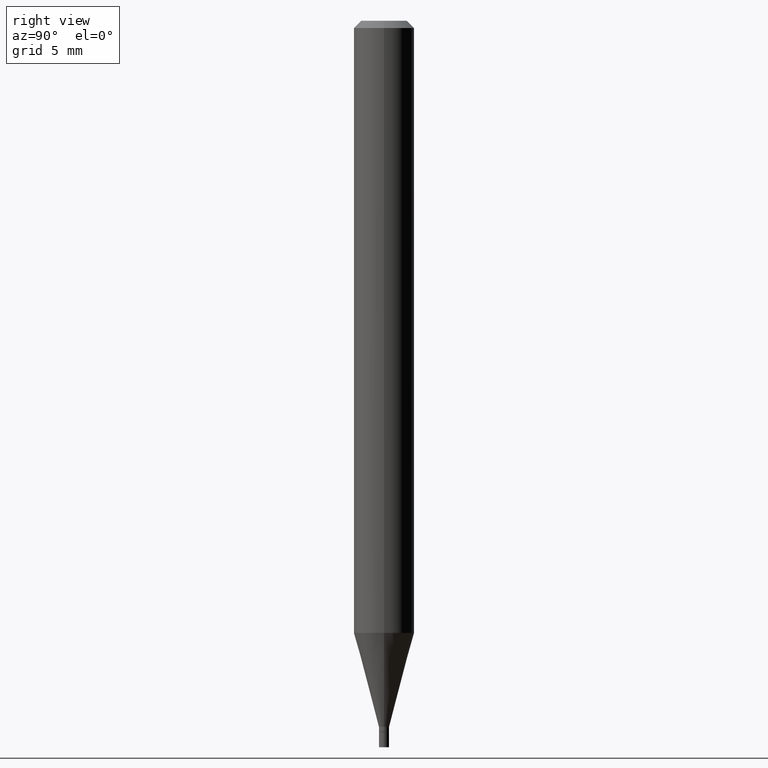
[diagram: clean part render]
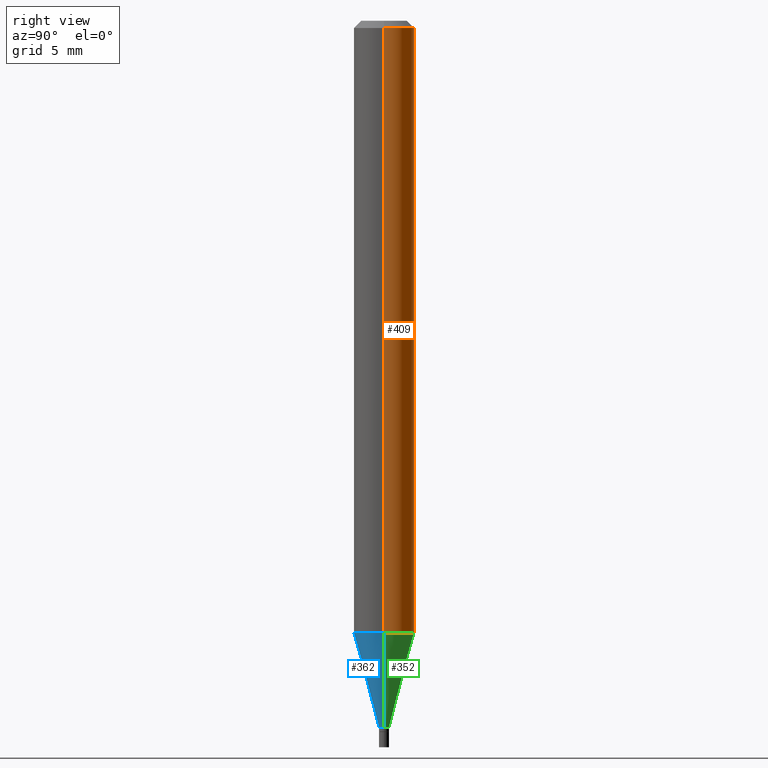
[diagram: same view with three faces highlighted in distinct colors, each labeled with its STEP entity id]
A machine part, right view with three faces highlighted in distinct colors.
Their STEP definitions:

[orange] entity #409 — the highlighted cylindrical surface (edge-blend (fillet) strip) has radius 1.5875 mm, axis along (-0, 0, 1).
#3 = LINE ( 'NONE', #438, #330 ) ;
#10 = CARTESIAN_POINT ( 'NONE',  ( 0.06250000000000000000, -4.849434900376155208E-15, -1.263933358006418706 ) ) ;
#15 = DIRECTION ( 'NONE',  ( -2.445468806185136877E-29, 3.491481338843145188E-15, 1.000000000000000000 ) ) ;
#19 = CARTESIAN_POINT ( 'NONE',  ( 0.000000000000000000, 0.000000000000000000, 0.000000000000000000 ) ) ;
#26 = AXIS2_PLACEMENT_3D ( 'NONE', #422, #268, #104 ) ;
#33 = VECTOR ( 'NONE', #15, 39.37007874015748143 ) ;
#77 = CYLINDRICAL_SURFACE ( 'NONE', #405, 0.06250000000000000000 ) ;
#88 = EDGE_LOOP ( 'NONE', ( #333, #410, #125, #463 ) ) ;
#90 = VERTEX_POINT ( 'NONE', #141 ) ;
#97 = CIRCLE ( 'NONE', #26, 0.06250000000000000000 ) ;
#104 = DIRECTION ( 'NONE',  ( 1.000000000000000000, -6.982962677686262766E-15, 0.000000000000000000 ) ) ;
#125 = ORIENTED_EDGE ( 'NONE', *, *, #332, .F. ) ;
#141 = CARTESIAN_POINT ( 'NONE',  ( -0.06250000000000000000, -1.788596766701642890E-15, -0.01499999999999999944 ) ) ;
#178 = FACE_OUTER_BOUND ( 'NONE', #88, .T. ) ;
#180 = EDGE_CURVE ( 'NONE', #335, #90, #383, .T. ) ;
#189 = VERTEX_POINT ( 'NONE', #314 ) ;
#204 = CIRCLE ( 'NONE', #232, 0.06250000000000000000 ) ;
#206 = DIRECTION ( 'NONE',  ( -2.445468806185136597E-29, 3.491481338843145583E-15, 1.000000000000000000 ) ) ;
#215 = CARTESIAN_POINT ( 'NONE',  ( 3.668203209277705088E-31, -5.237222008264718399E-17, -0.01499999999999999944 ) ) ;
#223 = VERTEX_POINT ( 'NONE', #10 ) ;
#232 = AXIS2_PLACEMENT_3D ( 'NONE', #215, #334, #296 ) ;
#256 = DIRECTION ( 'NONE',  ( -2.445468806185136877E-29, 3.491481338843145188E-15, 1.000000000000000000 ) ) ;
#268 = DIRECTION ( 'NONE',  ( -2.445468806185136597E-29, 3.491481338843145583E-15, 1.000000000000000000 ) ) ;
#287 = EDGE_CURVE ( 'NONE', #223, #189, #3, .T. ) ;
#296 = DIRECTION ( 'NONE',  ( 1.000000000000000000, -6.982962677686266711E-15, 0.000000000000000000 ) ) ;
#314 = CARTESIAN_POINT ( 'NONE',  ( 0.06250000000000000000, -4.888073874380388472E-16, -0.01499999999999999944 ) ) ;
#315 = DIRECTION ( 'NONE',  ( 1.000000000000000000, -6.982962677686266711E-15, 4.876176775795935793E-29 ) ) ;
#330 = VECTOR ( 'NONE', #256, 39.37007874015748143 ) ;
#332 = EDGE_CURVE ( 'NONE', #189, #90, #204, .T. ) ;
#333 = ORIENTED_EDGE ( 'NONE', *, *, #457, .T. ) ;
#334 = DIRECTION ( 'NONE',  ( -2.445468806185136597E-29, 3.491481338843145583E-15, 1.000000000000000000 ) ) ;
#335 = VERTEX_POINT ( 'NONE', #454 ) ;
#346 = CARTESIAN_POINT ( 'NONE',  ( -0.06250000000000000000, 4.440892098500626162E-16, -3.074334431409316114E-30 ) ) ;
#383 = LINE ( 'NONE', #346, #33 ) ;
#405 = AXIS2_PLACEMENT_3D ( 'NONE', #19, #206, #315 ) ;
#409 = ADVANCED_FACE ( 'NONE', ( #178 ), #77, .T. ) ;
#410 = ORIENTED_EDGE ( 'NONE', *, *, #180, .T. ) ;
#422 = CARTESIAN_POINT ( 'NONE',  ( 3.090909600101528156E-29, -4.412999733020764327E-15, -1.263933358006418706 ) ) ;
#438 = CARTESIAN_POINT ( 'NONE',  ( 0.06250000000000000000, -4.364351673553916694E-16, 3.047610484872459871E-30 ) ) ;
#454 = CARTESIAN_POINT ( 'NONE',  ( -0.06250000000000000000, -3.968910523170700922E-15, -1.263933358006418706 ) ) ;
#457 = EDGE_CURVE ( 'NONE', #223, #335, #97, .T. ) ;
#463 = ORIENTED_EDGE ( 'NONE', *, *, #287, .F. ) ;

[blue] entity #362 — the highlighted conical surface has half-angle 15 deg.
#8 = ORIENTED_EDGE ( 'NONE', *, *, #328, .T. ) ;
#10 = CARTESIAN_POINT ( 'NONE',  ( 0.06250000000000000000, -4.849434900376155208E-15, -1.263933358006418706 ) ) ;
#16 = VERTEX_POINT ( 'NONE', #358 ) ;
#20 = CIRCLE ( 'NONE', #227, 0.06250000000000000000 ) ;
#39 = CARTESIAN_POINT ( 'NONE',  ( 3.565493519417929750E-29, -5.090579792033306355E-15, -1.458000000000000185 ) ) ;
#43 = ORIENTED_EDGE ( 'NONE', *, *, #320, .T. ) ;
#49 = VECTOR ( 'NONE', #91, 39.37007874015747433 ) ;
#53 = DIRECTION ( 'NONE',  ( -2.445468806185136597E-29, 3.491481338843145583E-15, 1.000000000000000000 ) ) ;
#56 = ORIENTED_EDGE ( 'NONE', *, *, #241, .F. ) ;
#73 = DIRECTION ( 'NONE',  ( 0.2588190451025214611, 1.565188264969621573E-15, 0.9659258262890682012 ) ) ;
#84 = DIRECTION ( 'NONE',  ( 1.000000000000000000, -6.982962677686243834E-15, 0.000000000000000000 ) ) ;
#91 = DIRECTION ( 'NONE',  ( -0.2588190451025214611, 5.211531920934551042E-15, 0.9659258262890682012 ) ) ;
#119 = AXIS2_PLACEMENT_3D ( 'NONE', #39, #444, #84 ) ;
#146 = CARTESIAN_POINT ( 'NONE',  ( 3.565493519417929750E-29, -5.090579792033306355E-15, -1.458000000000000185 ) ) ;
#212 = CONICAL_SURFACE ( 'NONE', #119, 0.01049999999999992432, 0.2617993877991501295 ) ;
#223 = VERTEX_POINT ( 'NONE', #10 ) ;
#226 = CARTESIAN_POINT ( 'NONE',  ( -0.01049999999999992432, -5.015972804778496164E-15, -1.458000000000000185 ) ) ;
#227 = AXIS2_PLACEMENT_3D ( 'NONE', #231, #53, #309 ) ;
#231 = CARTESIAN_POINT ( 'NONE',  ( 3.090909600101528156E-29, -4.412999733020764327E-15, -1.263933358006418706 ) ) ;
#238 = EDGE_CURVE ( 'NONE', #415, #335, #442, .T. ) ;
#240 = LINE ( 'NONE', #462, #381 ) ;
#241 = EDGE_CURVE ( 'NONE', #335, #223, #20, .T. ) ;
#262 = EDGE_LOOP ( 'NONE', ( #408, #43, #8, #56 ) ) ;
#273 = FACE_OUTER_BOUND ( 'NONE', #262, .T. ) ;
#274 = AXIS2_PLACEMENT_3D ( 'NONE', #146, #331, #292 ) ;
#292 = DIRECTION ( 'NONE',  ( 1.000000000000000000, -6.982962677686243834E-15, 0.000000000000000000 ) ) ;
#309 = DIRECTION ( 'NONE',  ( 1.000000000000000000, -6.982962677686262766E-15, 0.000000000000000000 ) ) ;
#320 = EDGE_CURVE ( 'NONE', #415, #16, #325, .T. ) ;
#325 = CIRCLE ( 'NONE', #274, 0.01049999999999992432 ) ;
#328 = EDGE_CURVE ( 'NONE', #16, #223, #240, .T. ) ;
#331 = DIRECTION ( 'NONE',  ( -2.445468806185136597E-29, 3.491481338843145583E-15, 1.000000000000000000 ) ) ;
#335 = VERTEX_POINT ( 'NONE', #454 ) ;
#358 = CARTESIAN_POINT ( 'NONE',  ( 0.01049999999999992432, -5.163900900149011871E-15, -1.458000000000000185 ) ) ;
#362 = ADVANCED_FACE ( 'NONE', ( #273 ), #212, .T. ) ;
#381 = VECTOR ( 'NONE', #73, 39.37007874015747433 ) ;
#408 = ORIENTED_EDGE ( 'NONE', *, *, #238, .F. ) ;
#415 = VERTEX_POINT ( 'NONE', #458 ) ;
#442 = LINE ( 'NONE', #226, #49 ) ;
#444 = DIRECTION ( 'NONE',  ( -2.445468806185136597E-29, 3.491481338843145583E-15, 1.000000000000000000 ) ) ;
#454 = CARTESIAN_POINT ( 'NONE',  ( -0.06250000000000000000, -3.968910523170700922E-15, -1.263933358006418706 ) ) ;
#458 = CARTESIAN_POINT ( 'NONE',  ( -0.01049999999999992432, -4.492441663974599726E-15, -1.458000000000000185 ) ) ;
#462 = CARTESIAN_POINT ( 'NONE',  ( 0.01049999999999992432, -5.163900900149011871E-15, -1.458000000000000185 ) ) ;

[green] entity #352 — the highlighted conical surface has half-angle 15 deg.
#10 = CARTESIAN_POINT ( 'NONE',  ( 0.06250000000000000000, -4.849434900376155208E-15, -1.263933358006418706 ) ) ;
#12 = ORIENTED_EDGE ( 'NONE', *, *, #328, .F. ) ;
#16 = VERTEX_POINT ( 'NONE', #358 ) ;
#26 = AXIS2_PLACEMENT_3D ( 'NONE', #422, #268, #104 ) ;
#38 = ORIENTED_EDGE ( 'NONE', *, *, #238, .T. ) ;
#49 = VECTOR ( 'NONE', #91, 39.37007874015747433 ) ;
#62 = AXIS2_PLACEMENT_3D ( 'NONE', #428, #348, #214 ) ;
#73 = DIRECTION ( 'NONE',  ( 0.2588190451025214611, 1.565188264969621573E-15, 0.9659258262890682012 ) ) ;
#91 = DIRECTION ( 'NONE',  ( -0.2588190451025214611, 5.211531920934551042E-15, 0.9659258262890682012 ) ) ;
#93 = CARTESIAN_POINT ( 'NONE',  ( 3.565493519417929750E-29, -5.090579792033306355E-15, -1.458000000000000185 ) ) ;
#97 = CIRCLE ( 'NONE', #26, 0.06250000000000000000 ) ;
#104 = DIRECTION ( 'NONE',  ( 1.000000000000000000, -6.982962677686262766E-15, 0.000000000000000000 ) ) ;
#126 = EDGE_CURVE ( 'NONE', #16, #415, #460, .T. ) ;
#129 = FACE_OUTER_BOUND ( 'NONE', #160, .T. ) ;
#160 = EDGE_LOOP ( 'NONE', ( #185, #38, #293, #12 ) ) ;
#185 = ORIENTED_EDGE ( 'NONE', *, *, #126, .T. ) ;
#214 = DIRECTION ( 'NONE',  ( 1.000000000000000000, -6.982962677686243834E-15, 0.000000000000000000 ) ) ;
#223 = VERTEX_POINT ( 'NONE', #10 ) ;
#226 = CARTESIAN_POINT ( 'NONE',  ( -0.01049999999999992432, -5.015972804778496164E-15, -1.458000000000000185 ) ) ;
#238 = EDGE_CURVE ( 'NONE', #415, #335, #442, .T. ) ;
#240 = LINE ( 'NONE', #462, #381 ) ;
#268 = DIRECTION ( 'NONE',  ( -2.445468806185136597E-29, 3.491481338843145583E-15, 1.000000000000000000 ) ) ;
#290 = CONICAL_SURFACE ( 'NONE', #62, 0.01049999999999992432, 0.2617993877991501295 ) ;
#293 = ORIENTED_EDGE ( 'NONE', *, *, #457, .F. ) ;
#328 = EDGE_CURVE ( 'NONE', #16, #223, #240, .T. ) ;
#335 = VERTEX_POINT ( 'NONE', #454 ) ;
#348 = DIRECTION ( 'NONE',  ( -2.445468806185136597E-29, 3.491481338843145583E-15, 1.000000000000000000 ) ) ;
#351 = DIRECTION ( 'NONE',  ( 1.000000000000000000, -6.982962677686243834E-15, 0.000000000000000000 ) ) ;
#352 = ADVANCED_FACE ( 'NONE', ( #129 ), #290, .T. ) ;
#358 = CARTESIAN_POINT ( 'NONE',  ( 0.01049999999999992432, -5.163900900149011871E-15, -1.458000000000000185 ) ) ;
#381 = VECTOR ( 'NONE', #73, 39.37007874015747433 ) ;
#384 = DIRECTION ( 'NONE',  ( -2.445468806185136597E-29, 3.491481338843145583E-15, 1.000000000000000000 ) ) ;
#415 = VERTEX_POINT ( 'NONE', #458 ) ;
#422 = CARTESIAN_POINT ( 'NONE',  ( 3.090909600101528156E-29, -4.412999733020764327E-15, -1.263933358006418706 ) ) ;
#428 = CARTESIAN_POINT ( 'NONE',  ( 3.565493519417929750E-29, -5.090579792033306355E-15, -1.458000000000000185 ) ) ;
#442 = LINE ( 'NONE', #226, #49 ) ;
#443 = AXIS2_PLACEMENT_3D ( 'NONE', #93, #384, #351 ) ;
#454 = CARTESIAN_POINT ( 'NONE',  ( -0.06250000000000000000, -3.968910523170700922E-15, -1.263933358006418706 ) ) ;
#457 = EDGE_CURVE ( 'NONE', #223, #335, #97, .T. ) ;
#458 = CARTESIAN_POINT ( 'NONE',  ( -0.01049999999999992432, -4.492441663974599726E-15, -1.458000000000000185 ) ) ;
#460 = CIRCLE ( 'NONE', #443, 0.01049999999999992432 ) ;
#462 = CARTESIAN_POINT ( 'NONE',  ( 0.01049999999999992432, -5.163900900149011871E-15, -1.458000000000000185 ) ) ;